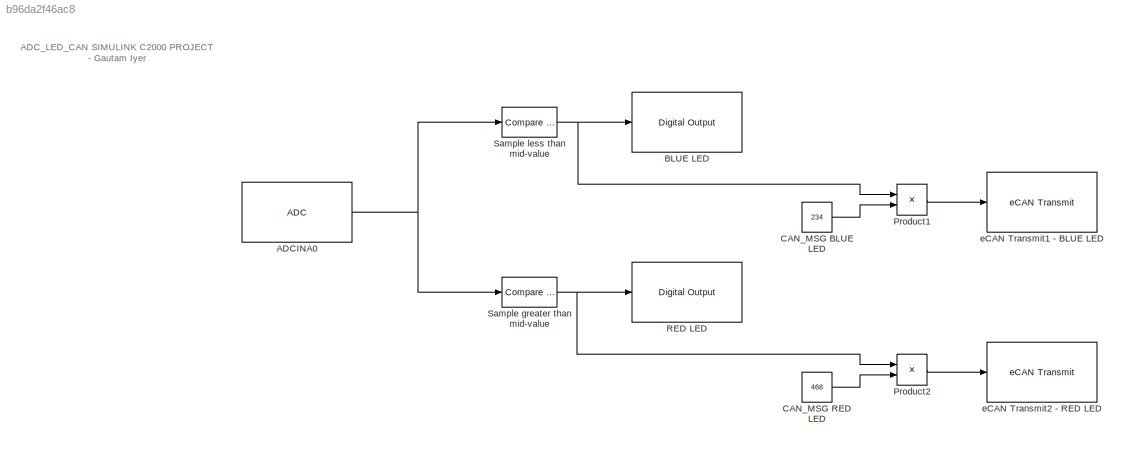
MODEL slx_b96da2f46ac8
KIND model
CONFIG AbsTol = auto
CONFIG EnableMultiTasking = on
CONFIG FixedStep = auto
CONFIG MaxStep = auto
CONFIG MinStep = auto
CONFIG RelTol = 1e-3
CONFIG SampleTimeConstraint = Unconstrained
CONFIG Solver = FixedStepDiscrete
CONFIG SolverName = FixedStepDiscrete
CONFIG StartTime = 0.0
CONFIG StopTime = 10.0
BLOCK [Reference] ADCINA0  REF=c2802xlib/ADC
  Ports = [0, 1]
  SourceBlock = c2802xlib/ADC
  SourceType = C2802x/03x/05x/06x/M3x/37x/07x ADC
  UserDataPersistent = on
BLOCK [Reference] BLUE LED  REF=c2837xDlib/Digital Output
  Ports = [1]
  SourceBlock = c2837xDlib/Digital Output
  SourceType = F2837x GPIO Digital Output
  UserDataPersistent = on
BLOCK [Constant] CAN_MSG BLUE LED
  OutDataTypeStr = uint32
  SampleTime = 0.5
  Value = 234
BLOCK [Constant] CAN_MSG RED LED
  OutDataTypeStr = uint32
  SampleTime = 0.5
  Value = 468
BLOCK [Product] Product1
  InputSameDT = off
  OutDataTypeStr = uint32
  Ports = [2, 1]
  RndMeth = Floor
  SaturateOnIntegerOverflow = off
BLOCK [Product] Product2
  InputSameDT = off
  OutDataTypeStr = uint32
  Ports = [2, 1]
  RndMeth = Floor
  SaturateOnIntegerOverflow = off
BLOCK [Reference] RED LED  REF=c2837xDlib/Digital Output
  Ports = [1]
  SourceBlock = c2837xDlib/Digital Output
  SourceType = F2837x GPIO Digital Output
  UserDataPersistent = on
BLOCK [Reference] Sample greater than mid-value  REF=simulink/Logic and Bit
Operations/Compare
To Constant
  Ports = [1, 1]
  SourceBlock = simulink/Logic and Bit\nOperations/Compare\nTo Constant
  SourceType = Compare To Constant
BLOCK [Reference] Sample less than mid-value  REF=simulink/Logic and Bit
Operations/Compare
To Constant
  Ports = [1, 1]
  SourceBlock = simulink/Logic and Bit\nOperations/Compare\nTo Constant
  SourceType = Compare To Constant
BLOCK [Reference] eCAN Transmit1 - BLUE LED  REF=c280xlib/eCAN Transmit
  Ports = [1]
  SourceBlock = c280xlib/eCAN Transmit
  SourceType = C28x eCAN Transmit
BLOCK [Reference] eCAN Transmit2 - RED LED   REF=c280xlib/eCAN Transmit
  Ports = [1]
  SourceBlock = c280xlib/eCAN Transmit
  SourceType = C28x eCAN Transmit
ANNOTATION (root): ADC_LED_CAN SIMULINK C2000 PROJECT - Gautam Iyer
NET ADCINA0:1 -> Sample greater than mid-value:1, Sample less than mid-value:1
LINE CAN_MSG BLUE LED:1 -> Product1:2
LINE CAN_MSG RED LED:1 -> Product2:2
LINE Product1:1 -> eCAN Transmit1 - BLUE LED:1
LINE Product2:1 -> eCAN Transmit2 - RED LED :1
NET Sample greater than mid-value:1 -> Product2:1, RED LED:1
NET Sample less than mid-value:1 -> BLUE LED:1, Product1:1
note: NET lines group one-source signal fan-out (src -> all destinations, sorted); 1:1 wires keep LINE
